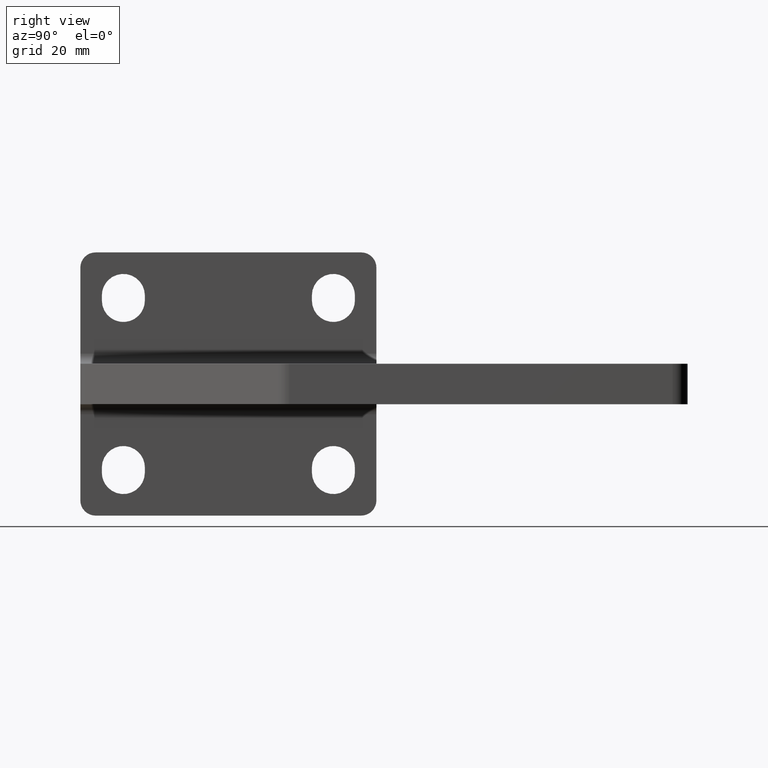
[diagram: clean part render]
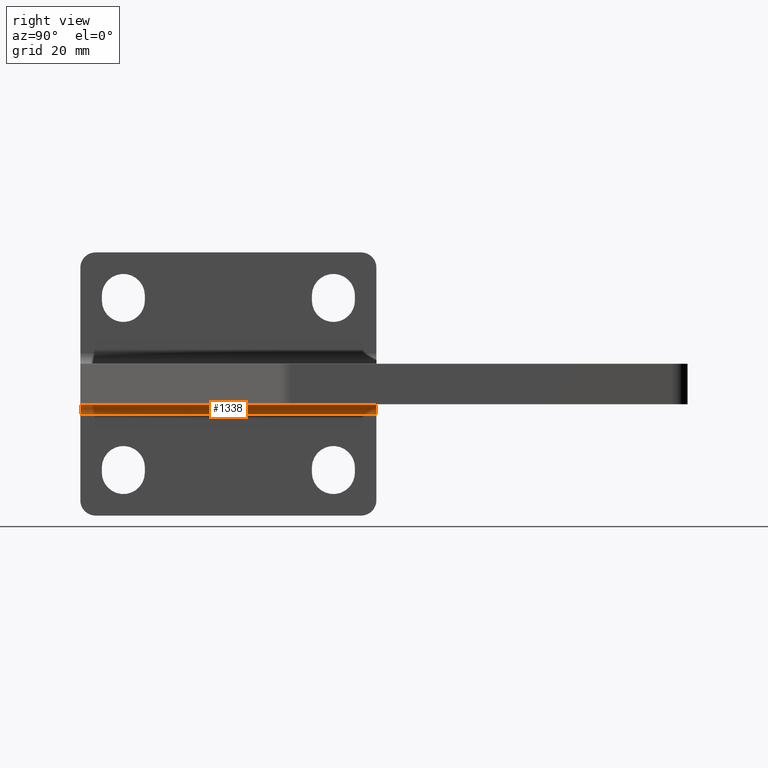
[diagram: same view with one face highlighted and labeled with its STEP entity id]
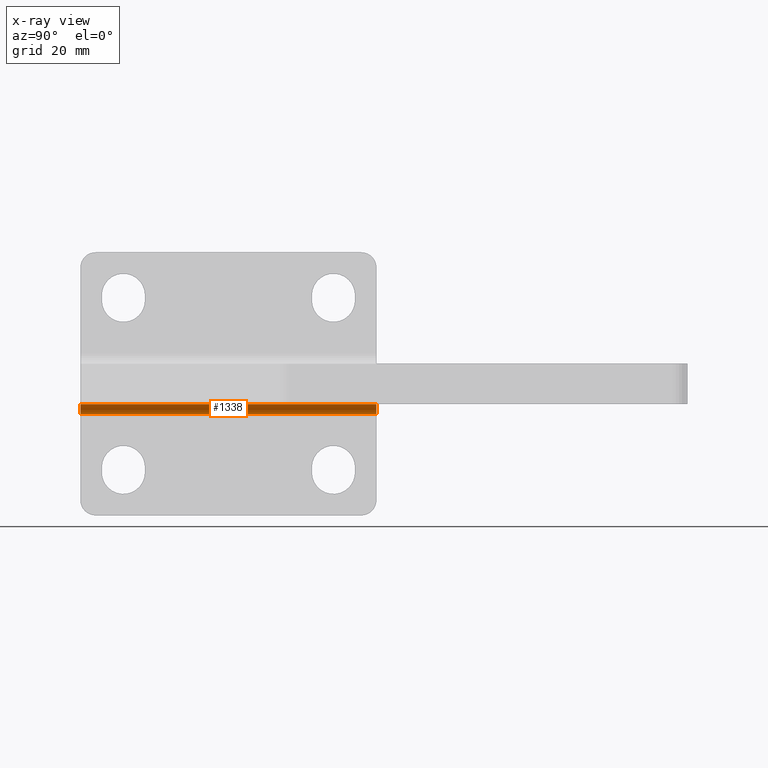
[diagram: x-ray of the same camera — body ghosted, the highlighted face saturated]
A machine part, right view. The second image highlights one B-rep face of the part: STEP entity #1338.
The next image is the same camera in x-ray: the body ghosted, the highlighted face saturated — about 0% of this face is hidden behind the body in this view.
In plain terms, the highlighted face is a freeform B-spline surface patch.
Its self-contained STEP definition (entity closure, byte-faithful):
#1198=CARTESIAN_POINT('',(-48.502768757920627,53.695288139689019,-5.999999999999995));
#1199=VERTEX_POINT('',#1198);
#1206=CARTESIAN_POINT('',(-48.502768757920620,-4.804711860310986,-5.999999999999995));
#1207=VERTEX_POINT('',#1206);
#1208=CARTESIAN_POINT('',(-48.502768757920620,-4.804711860310986,-5.999999999999995));
#1209=DIRECTION('',(0.0,1.0,0.0));
#1210=VECTOR('',#1209,58.500000000000007);
#1211=LINE('',#1208,#1210);
#1212=EDGE_CURVE('',#1207,#1199,#1211,.T.);
#1285=CARTESIAN_POINT('',(-46.502768757920634,53.695288139689026,-7.999999999999997));
#1286=CARTESIAN_POINT('',(-46.502768757920620,-4.804711860310988,-7.999999999999997));
#1287=CARTESIAN_POINT('',(-44.502768757920634,53.695288139689026,-7.999999999999996));
#1288=CARTESIAN_POINT('',(-44.502768757920620,-4.804711860310988,-7.999999999999996));
#1289=CARTESIAN_POINT('',(-44.502768757920634,53.695288139689026,-5.999999999999996));
#1290=CARTESIAN_POINT('',(-44.502768757920620,-4.804711860310988,-5.999999999999996));
#1291=CARTESIAN_POINT('',(-44.502768757920634,53.695288139689026,-3.999999999999996));
#1292=CARTESIAN_POINT('',(-44.502768757920620,-4.804711860310988,-3.999999999999996));
#1293=CARTESIAN_POINT('',(-46.502768757920634,53.695288139689026,-3.999999999999996));
#1294=CARTESIAN_POINT('',(-46.502768757920620,-4.804711860310988,-3.999999999999996));
#1295=CARTESIAN_POINT('',(-48.502768757920634,53.695288139689026,-3.999999999999996));
#1296=CARTESIAN_POINT('',(-48.502768757920620,-4.804711860310988,-3.999999999999996));
#1297=CARTESIAN_POINT('',(-48.502768757920634,53.695288139689026,-5.999999999999996));
#1298=CARTESIAN_POINT('',(-48.502768757920620,-4.804711860310988,-5.999999999999996));
#1299=CARTESIAN_POINT('',(-48.502768757920634,53.695288139689026,-7.999999999999996));
#1300=CARTESIAN_POINT('',(-48.502768757920620,-4.804711860310988,-7.999999999999996));
#1301=CARTESIAN_POINT('',(-46.502768757920634,53.695288139689026,-7.999999999999997));
#1302=CARTESIAN_POINT('',(-46.502768757920620,-4.804711860310988,-7.999999999999997));
#1310=(BOUNDED_SURFACE()B_SPLINE_SURFACE(1,2,((#1285,#1287,#1289,#1291,#1293,#1295,#1297,#1299,#1301),(#1286,#1288,#1290,#1292,#1294,#1296,#1298,#1300,#1302)),.UNSPECIFIED.,.F.,.T.,.U.)B_SPLINE_SURFACE_WITH_KNOTS((2,2),(3,2,2,2,3),(-14.624999999999998,14.624999999999995),(0.0,3.141592653589794,6.283185307179589,9.424777960769383,12.566370614359178),.UNSPECIFIED.)GEOMETRIC_REPRESENTATION_ITEM()RATIONAL_B_SPLINE_SURFACE(((1.0,0.707106781186548,1.0,0.707106781186548,1.0,0.707106781186548,1.0,0.707106781186548,1.0),(1.0,0.707106781186548,1.0,0.707106781186548,1.0,0.707106781186548,1.0,0.707106781186548,1.0)))REPRESENTATION_ITEM('')SURFACE());
#1311=ORIENTED_EDGE('',*,*,#1212,.T.);
#1312=CARTESIAN_POINT('',(-46.502768757920627,53.695288139689019,-3.999999999999996));
#1313=VERTEX_POINT('',#1312);
#1314=CARTESIAN_POINT('',(-46.502768757920634,53.695288139689019,-5.999999999999996));
#1315=DIRECTION('',(0.0,-1.0,0.0));
#1316=DIRECTION('',(0.0,0.0,1.0));
#1317=AXIS2_PLACEMENT_3D('',#1314,#1315,#1316);
#1318=CIRCLE('',#1317,2.000000000000001);
#1319=EDGE_CURVE('',#1313,#1199,#1318,.T.);
#1320=ORIENTED_EDGE('',*,*,#1319,.F.);
#1321=CARTESIAN_POINT('',(-46.502768757920620,-4.804711860310986,-3.999999999999996));
#1322=VERTEX_POINT('',#1321);
#1323=CARTESIAN_POINT('',(-46.502768757920627,53.695288139689019,-3.999999999999996));
#1324=DIRECTION('',(0.0,-1.0,0.0));
#1325=VECTOR('',#1324,58.500000000000007);
#1326=LINE('',#1323,#1325);
#1327=EDGE_CURVE('',#1313,#1322,#1326,.T.);
#1328=ORIENTED_EDGE('',*,*,#1327,.T.);
#1329=CARTESIAN_POINT('',(-46.502768757920627,-4.804711860310986,-5.999999999999996));
#1330=DIRECTION('',(0.0,-1.0,0.0));
#1331=DIRECTION('',(0.0,0.0,1.0));
#1332=AXIS2_PLACEMENT_3D('',#1329,#1330,#1331);
#1333=CIRCLE('',#1332,2.000000000000001);
#1334=EDGE_CURVE('',#1322,#1207,#1333,.T.);
#1335=ORIENTED_EDGE('',*,*,#1334,.T.);
#1336=EDGE_LOOP('',(#1311,#1320,#1328,#1335));
#1337=FACE_OUTER_BOUND('',#1336,.T.);
#1338=ADVANCED_FACE('',(#1337),#1310,.T.);